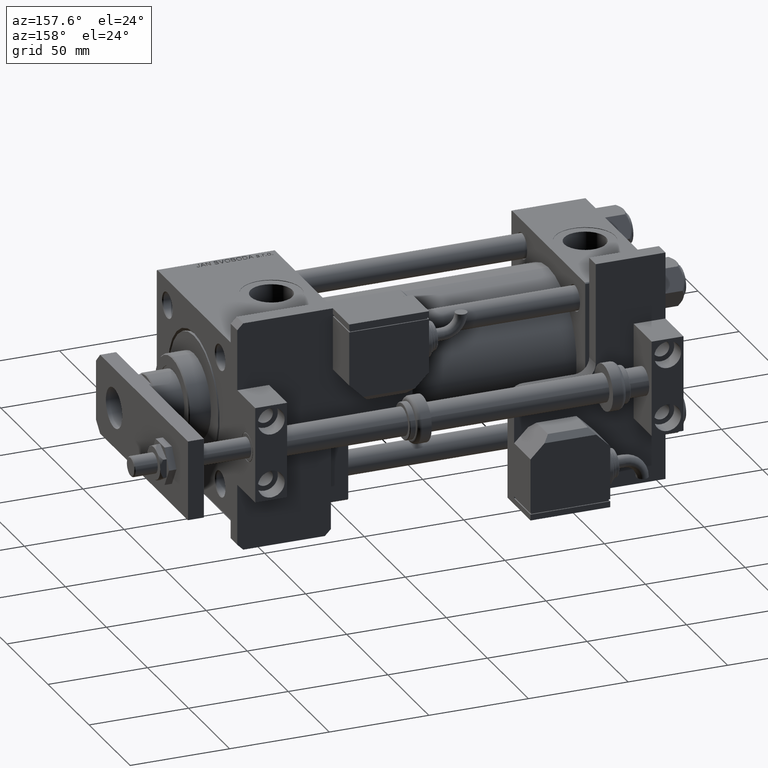
[diagram: clean part render]
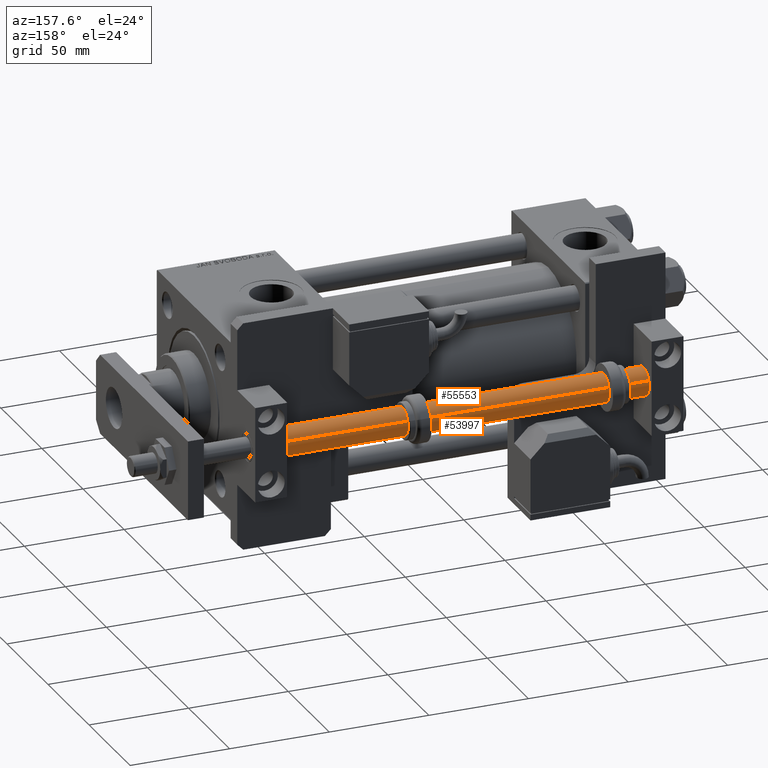
[diagram: same view with one multi-face feature highlighted, each face labeled with its STEP entity id]
A machine part, auxiliary view. The highlighted faces form ONE feature: a constant-radius fillet chain: 2 tangent blend faces with common blend radius 7 mm. The faces share edges in the B-rep.
Their STEP definitions:
[1] entity #55553 (Cylinder):
#3072 = CARTESIAN_POINT ( 'NONE',  ( -7.000000000000000000, 0.000000000000000000, 215.0000000000000000 ) ) ;
#3667 = AXIS2_PLACEMENT_3D ( 'NONE', #8551, #36108, #44333 ) ;
#6241 = CIRCLE ( 'NONE', #7172, 7.000000000000000000 ) ;
#7172 = AXIS2_PLACEMENT_3D ( 'NONE', #41732, #33195, #45810 ) ;
#8551 = CARTESIAN_POINT ( 'NONE',  ( 0.000000000000000000, 0.000000000000000000, 0.2999999999999947153 ) ) ;
#11943 = VERTEX_POINT ( 'NONE', #52833 ) ;
#12273 = ORIENTED_EDGE ( 'NONE', *, *, #48626, .F. ) ;
#12477 = CARTESIAN_POINT ( 'NONE',  ( 7.000000000000000000, 8.572527594031473190E-16, 215.0000000000000000 ) ) ;
#16799 = DIRECTION ( 'NONE',  ( -0.000000000000000000, -0.000000000000000000, -1.000000000000000000 ) ) ;
#17758 = ORIENTED_EDGE ( 'NONE', *, *, #33413, .T. ) ;
#18967 = ORIENTED_EDGE ( 'NONE', *, *, #56953, .T. ) ;
#22921 = CARTESIAN_POINT ( 'NONE',  ( 7.000000000000000000, 8.572527594031473190E-16, 0.2999999999999947153 ) ) ;
#25140 = AXIS2_PLACEMENT_3D ( 'NONE', #35015, #27078, #54070 ) ;
#25304 = DIRECTION ( 'NONE',  ( -0.000000000000000000, -0.000000000000000000, -1.000000000000000000 ) ) ;
#25581 = LINE ( 'NONE', #26160, #41759 ) ;
#26160 = CARTESIAN_POINT ( 'NONE',  ( 7.000000000000000000, 8.572527594031473190E-16, 215.0000000000000000 ) ) ;
#27078 = DIRECTION ( 'NONE',  ( -0.000000000000000000, -0.000000000000000000, -1.000000000000000000 ) ) ;
#29574 = VERTEX_POINT ( 'NONE', #12477 ) ;
#31194 = CYLINDRICAL_SURFACE ( 'NONE', #25140, 7.000000000000000000 ) ;
#33195 = DIRECTION ( 'NONE',  ( 0.000000000000000000, 0.000000000000000000, 1.000000000000000000 ) ) ;
#33413 = EDGE_CURVE ( 'NONE', #44393, #11943, #34992, .T. ) ;
#34992 = LINE ( 'NONE', #35284, #46293 ) ;
#35015 = CARTESIAN_POINT ( 'NONE',  ( 0.000000000000000000, 0.000000000000000000, 215.0000000000000000 ) ) ;
#35264 = EDGE_CURVE ( 'NONE', #29574, #37182, #25581, .T. ) ;
#35284 = CARTESIAN_POINT ( 'NONE',  ( -7.000000000000000000, 0.000000000000000000, 215.0000000000000000 ) ) ;
#36108 = DIRECTION ( 'NONE',  ( -0.000000000000000000, -0.000000000000000000, 1.000000000000000000 ) ) ;
#37182 = VERTEX_POINT ( 'NONE', #22921 ) ;
#41076 = EDGE_LOOP ( 'NONE', ( #56635, #12273, #17758, #18967 ) ) ;
#41732 = CARTESIAN_POINT ( 'NONE',  ( 0.000000000000000000, 0.000000000000000000, 215.0000000000000000 ) ) ;
#41759 = VECTOR ( 'NONE', #25304, 1000.000000000000000 ) ;
#44108 = FACE_OUTER_BOUND ( 'NONE', #41076, .T. ) ;
#44333 = DIRECTION ( 'NONE',  ( 1.000000000000000000, 0.000000000000000000, 0.000000000000000000 ) ) ;
#44393 = VERTEX_POINT ( 'NONE', #3072 ) ;
#45810 = DIRECTION ( 'NONE',  ( 1.000000000000000000, 0.000000000000000000, 0.000000000000000000 ) ) ;
#46293 = VECTOR ( 'NONE', #16799, 1000.000000000000000 ) ;
#48626 = EDGE_CURVE ( 'NONE', #44393, #29574, #6241, .T. ) ;
#52833 = CARTESIAN_POINT ( 'NONE',  ( -7.000000000000000000, 0.000000000000000000, 0.2999999999999947153 ) ) ;
#53359 = CIRCLE ( 'NONE', #3667, 7.000000000000000000 ) ;
#54070 = DIRECTION ( 'NONE',  ( -1.000000000000000000, 0.000000000000000000, 0.000000000000000000 ) ) ;
#55553 = ADVANCED_FACE ( 'NONE', ( #44108 ), #31194, .T. ) ;
#56635 = ORIENTED_EDGE ( 'NONE', *, *, #35264, .F. ) ;
#56953 = EDGE_CURVE ( 'NONE', #11943, #37182, #53359, .T. ) ;
[2] entity #53997 (Cylinder):
#3072 = CARTESIAN_POINT ( 'NONE',  ( -7.000000000000000000, 0.000000000000000000, 215.0000000000000000 ) ) ;
#3160 = DIRECTION ( 'NONE',  ( -0.000000000000000000, -0.000000000000000000, 1.000000000000000000 ) ) ;
#3433 = DIRECTION ( 'NONE',  ( 0.000000000000000000, 0.000000000000000000, 1.000000000000000000 ) ) ;
#3457 = DIRECTION ( 'NONE',  ( -1.000000000000000000, 0.000000000000000000, 0.000000000000000000 ) ) ;
#3554 = AXIS2_PLACEMENT_3D ( 'NONE', #4012, #3433, #30151 ) ;
#4012 = CARTESIAN_POINT ( 'NONE',  ( 0.000000000000000000, 0.000000000000000000, 215.0000000000000000 ) ) ;
#6661 = ORIENTED_EDGE ( 'NONE', *, *, #51803, .F. ) ;
#10185 = EDGE_LOOP ( 'NONE', ( #6661, #36060, #16613, #11117 ) ) ;
#11117 = ORIENTED_EDGE ( 'NONE', *, *, #33413, .F. ) ;
#11943 = VERTEX_POINT ( 'NONE', #52833 ) ;
#12002 = CIRCLE ( 'NONE', #3554, 7.000000000000000000 ) ;
#12477 = CARTESIAN_POINT ( 'NONE',  ( 7.000000000000000000, 8.572527594031473190E-16, 215.0000000000000000 ) ) ;
#12557 = DIRECTION ( 'NONE',  ( -0.000000000000000000, -0.000000000000000000, -1.000000000000000000 ) ) ;
#15788 = CARTESIAN_POINT ( 'NONE',  ( 0.000000000000000000, 0.000000000000000000, 0.2999999999999947153 ) ) ;
#16613 = ORIENTED_EDGE ( 'NONE', *, *, #36723, .T. ) ;
#16799 = DIRECTION ( 'NONE',  ( -0.000000000000000000, -0.000000000000000000, -1.000000000000000000 ) ) ;
#22921 = CARTESIAN_POINT ( 'NONE',  ( 7.000000000000000000, 8.572527594031473190E-16, 0.2999999999999947153 ) ) ;
#22986 = AXIS2_PLACEMENT_3D ( 'NONE', #15788, #3160, #38696 ) ;
#25304 = DIRECTION ( 'NONE',  ( -0.000000000000000000, -0.000000000000000000, -1.000000000000000000 ) ) ;
#25581 = LINE ( 'NONE', #26160, #41759 ) ;
#26160 = CARTESIAN_POINT ( 'NONE',  ( 7.000000000000000000, 8.572527594031473190E-16, 215.0000000000000000 ) ) ;
#29574 = VERTEX_POINT ( 'NONE', #12477 ) ;
#30151 = DIRECTION ( 'NONE',  ( 1.000000000000000000, 0.000000000000000000, 0.000000000000000000 ) ) ;
#33413 = EDGE_CURVE ( 'NONE', #44393, #11943, #34992, .T. ) ;
#33563 = AXIS2_PLACEMENT_3D ( 'NONE', #42817, #12557, #3457 ) ;
#34992 = LINE ( 'NONE', #35284, #46293 ) ;
#35264 = EDGE_CURVE ( 'NONE', #29574, #37182, #25581, .T. ) ;
#35284 = CARTESIAN_POINT ( 'NONE',  ( -7.000000000000000000, 0.000000000000000000, 215.0000000000000000 ) ) ;
#36060 = ORIENTED_EDGE ( 'NONE', *, *, #35264, .T. ) ;
#36723 = EDGE_CURVE ( 'NONE', #37182, #11943, #39907, .T. ) ;
#37182 = VERTEX_POINT ( 'NONE', #22921 ) ;
#38421 = CYLINDRICAL_SURFACE ( 'NONE', #33563, 7.000000000000000000 ) ;
#38696 = DIRECTION ( 'NONE',  ( 1.000000000000000000, 0.000000000000000000, 0.000000000000000000 ) ) ;
#39907 = CIRCLE ( 'NONE', #22986, 7.000000000000000000 ) ;
#41759 = VECTOR ( 'NONE', #25304, 1000.000000000000000 ) ;
#42817 = CARTESIAN_POINT ( 'NONE',  ( 0.000000000000000000, 0.000000000000000000, 215.0000000000000000 ) ) ;
#44393 = VERTEX_POINT ( 'NONE', #3072 ) ;
#46293 = VECTOR ( 'NONE', #16799, 1000.000000000000000 ) ;
#51803 = EDGE_CURVE ( 'NONE', #29574, #44393, #12002, .T. ) ;
#52833 = CARTESIAN_POINT ( 'NONE',  ( -7.000000000000000000, 0.000000000000000000, 0.2999999999999947153 ) ) ;
#53997 = ADVANCED_FACE ( 'NONE', ( #55704 ), #38421, .T. ) ;
#55704 = FACE_OUTER_BOUND ( 'NONE', #10185, .T. ) ;